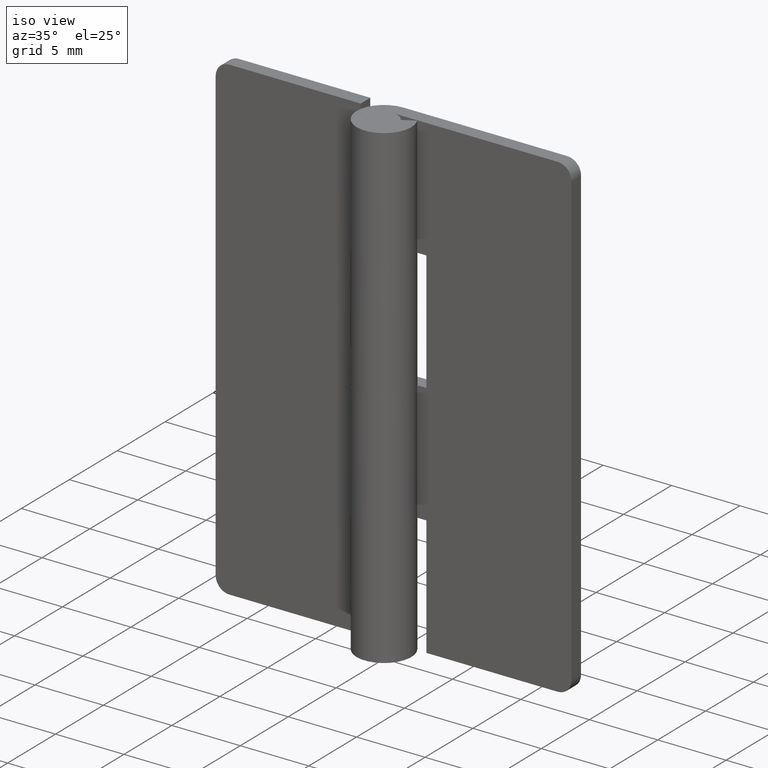
[diagram: clean part render]
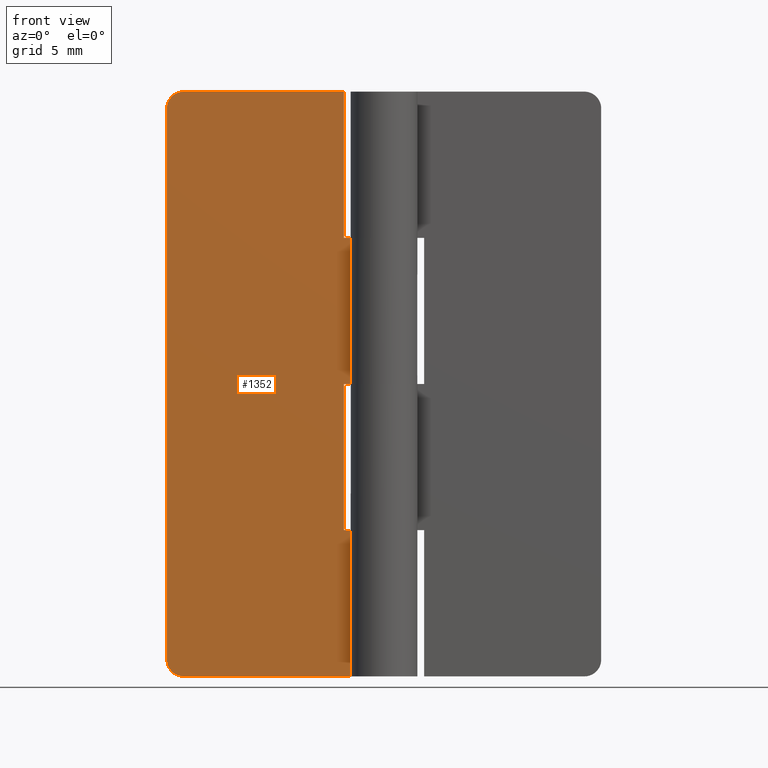
[diagram: tour spotlight — one face highlighted and labeled with its STEP entity id]
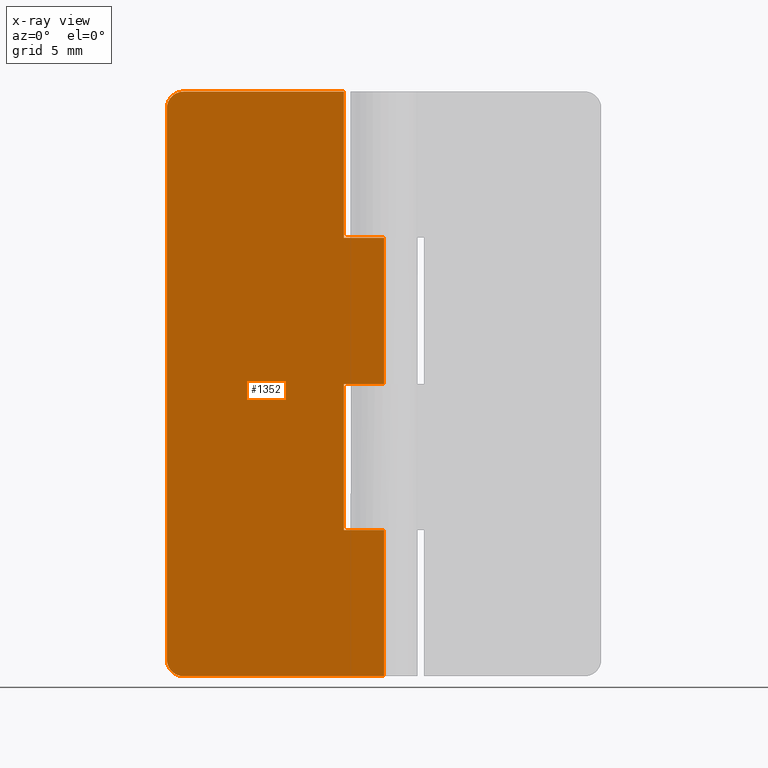
[diagram: x-ray of the same camera — body ghosted, this tour face saturated]
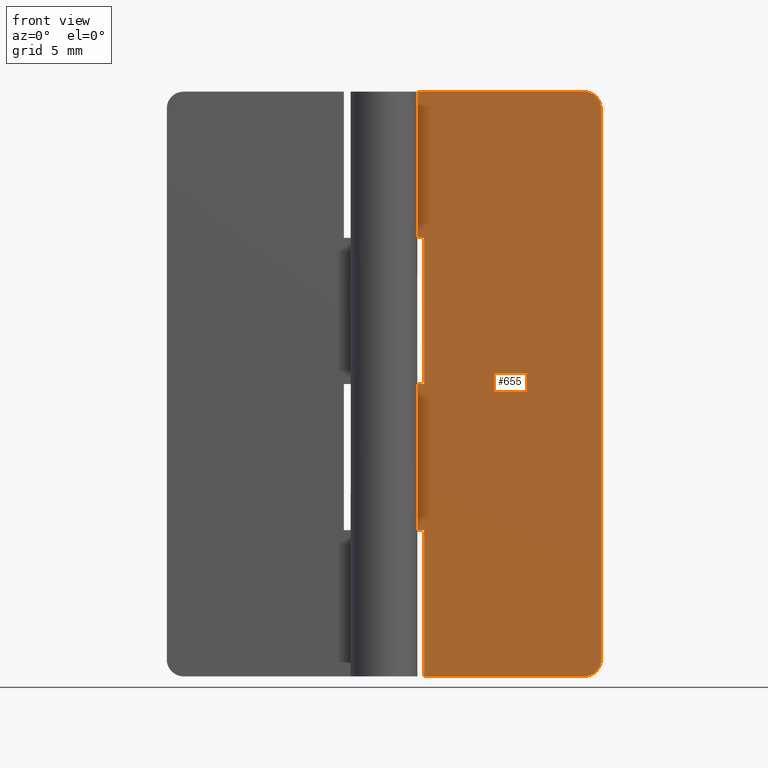
[diagram: tour spotlight — one face highlighted and labeled with its STEP entity id]
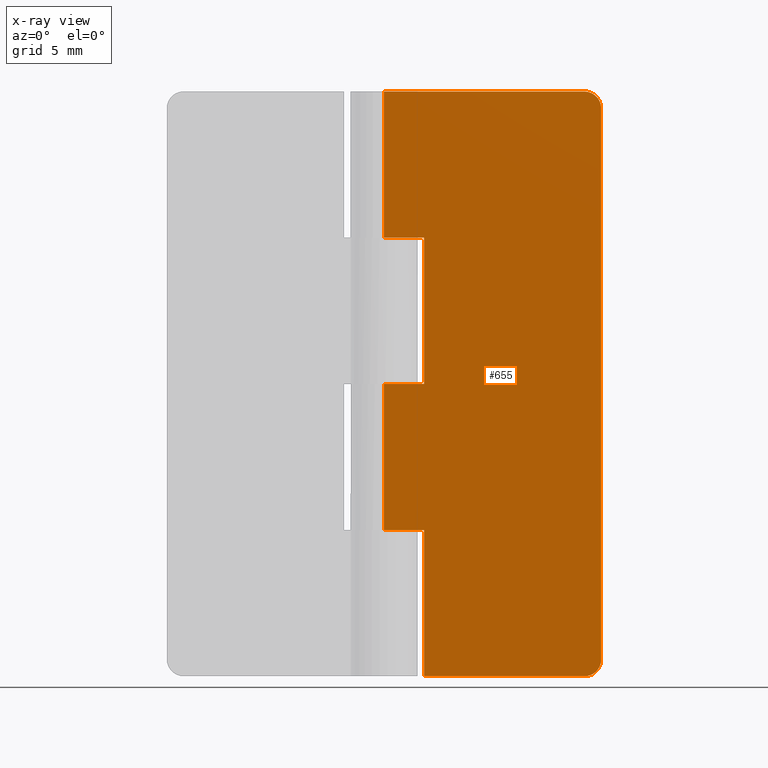
[diagram: x-ray of the same camera — body ghosted, this tour face saturated]
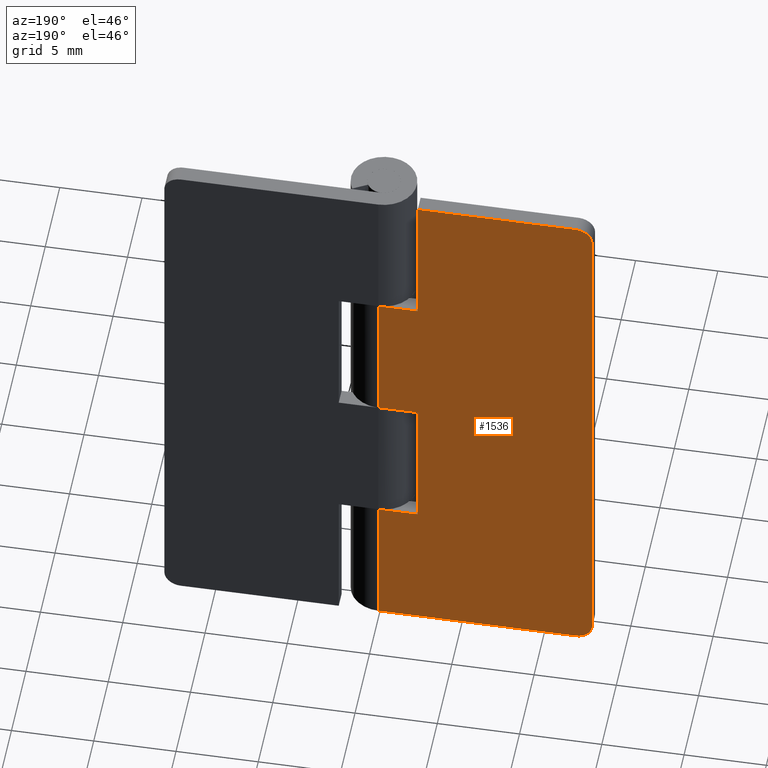
[diagram: tour spotlight — one face highlighted and labeled with its STEP entity id]
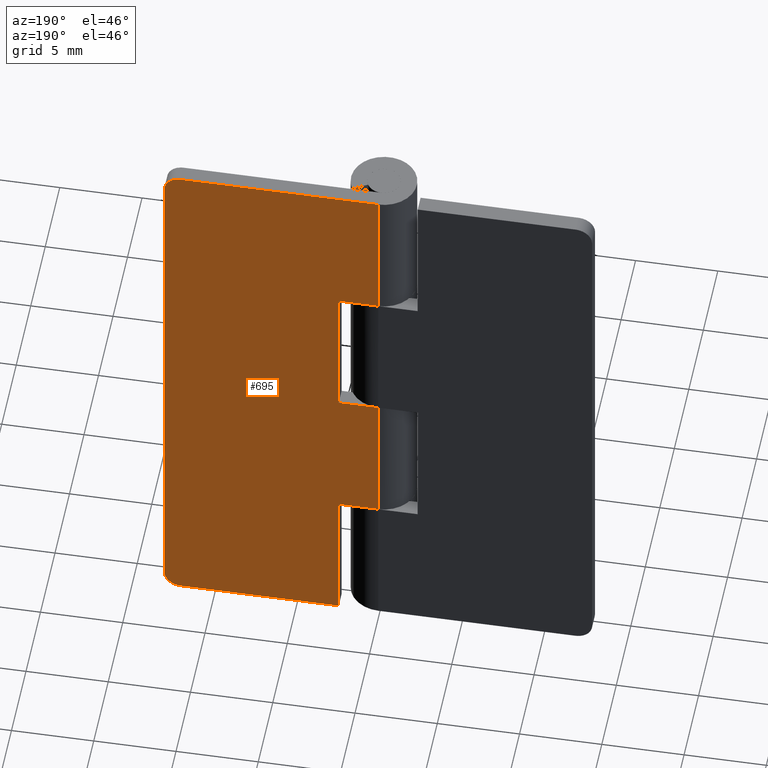
[diagram: tour spotlight — one face highlighted and labeled with its STEP entity id]
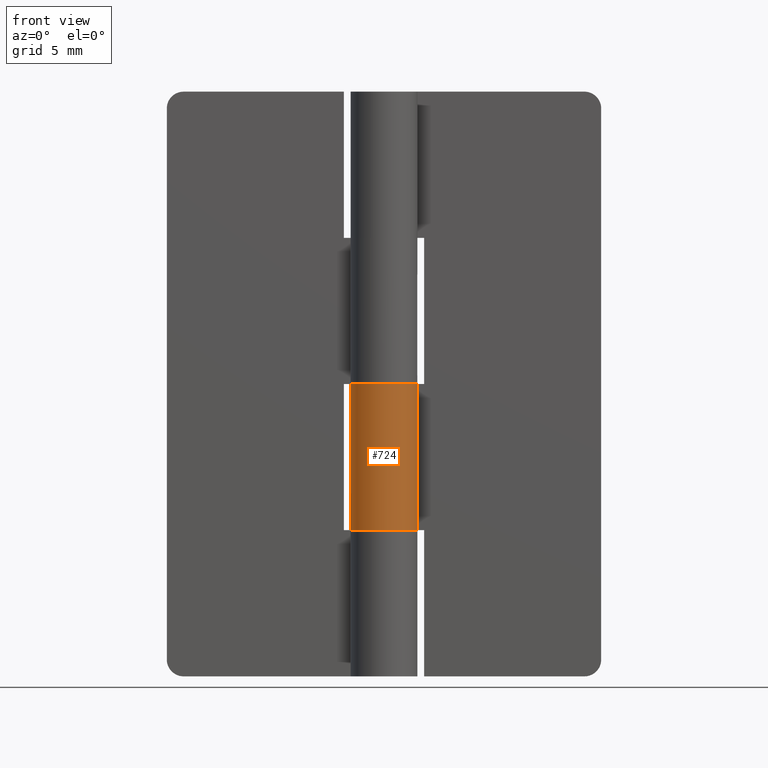
[diagram: tour spotlight — one face highlighted and labeled with its STEP entity id]
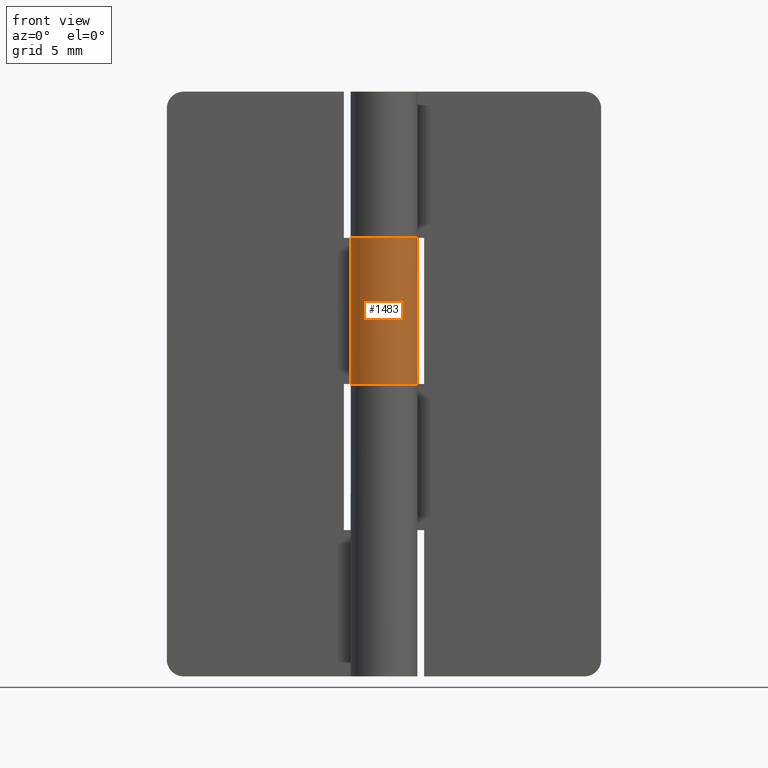
[diagram: tour spotlight — one face highlighted and labeled with its STEP entity id]
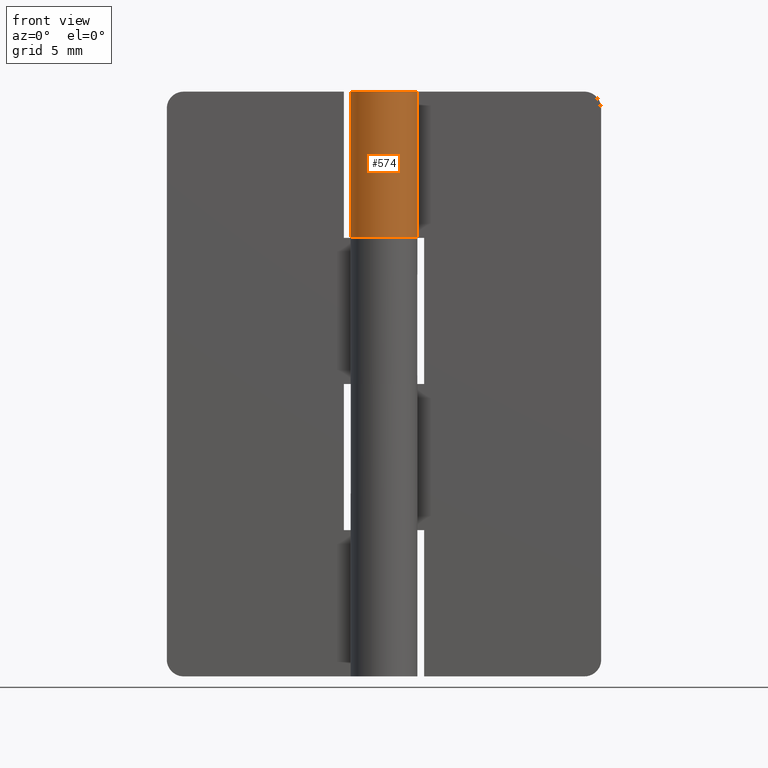
[diagram: tour spotlight — one face highlighted and labeled with its STEP entity id]
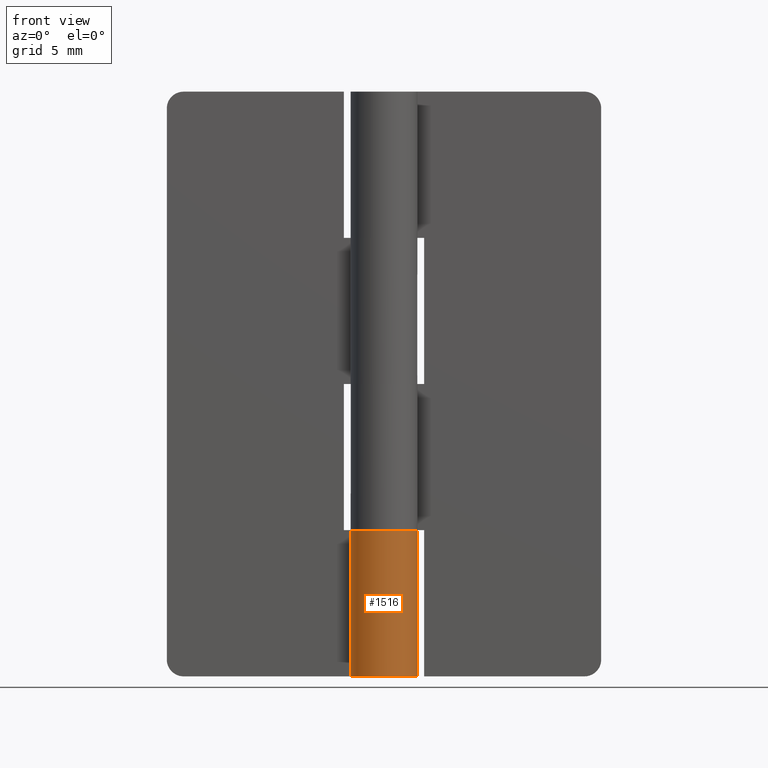
[diagram: tour spotlight — one face highlighted and labeled with its STEP entity id]
A machine part: a face-by-face anatomy tour. The part has 40 B-rep faces; the first image is the clean iso view, then the 8 largest visible faces are spotlighted one at a time (largest first), each with its STEP entity span.

Face 1 — front view, entity #1352. An x-ray twin of the same camera follows (body ghosted, this face saturated) — the face is partly hidden behind the body. In plain terms, the highlighted face is a freeform B-spline surface patch.
Definition (entity closure, byte-faithful):
#825=CARTESIAN_POINT('',(-12.0,1.0,35.0));
#826=VERTEX_POINT('',#825);
#827=CARTESIAN_POINT('',(-13.0,1.0,34.0));
#828=VERTEX_POINT('',#827);
#829=CARTESIAN_POINT('',(-12.0,1.0,35.0));
#830=CARTESIAN_POINT('',(-13.000000000000004,1.0,34.999999999999993));
#831=CARTESIAN_POINT('',(-13.0,1.0,34.0));
#839=(BOUNDED_CURVE()B_SPLINE_CURVE(2,(#829,#830,#831),.UNSPECIFIED.,.F.,.U.)CURVE()GEOMETRIC_REPRESENTATION_ITEM()QUASI_UNIFORM_CURVE()RATIONAL_B_SPLINE_CURVE((1.0,0.707106781186548,1.0))REPRESENTATION_ITEM(''));
#840=EDGE_CURVE('',#826,#828,#839,.T.);
#886=CARTESIAN_POINT('',(-13.0,1.0,1.0));
#887=VERTEX_POINT('',#886);
#888=CARTESIAN_POINT('',(-12.0,1.0,0.0));
#889=VERTEX_POINT('',#888);
#890=CARTESIAN_POINT('',(-13.0,1.0,1.0));
#891=CARTESIAN_POINT('',(-13.000000000000004,1.0,0.0));
#892=CARTESIAN_POINT('',(-12.0,1.0,0.0));
#900=(BOUNDED_CURVE()B_SPLINE_CURVE(2,(#890,#891,#892),.UNSPECIFIED.,.F.,.U.)CURVE()GEOMETRIC_REPRESENTATION_ITEM()QUASI_UNIFORM_CURVE()RATIONAL_B_SPLINE_CURVE((1.0,0.707106781186548,1.0))REPRESENTATION_ITEM(''));
#901=EDGE_CURVE('',#887,#889,#900,.T.);
#968=CARTESIAN_POINT('',(6.123032E-017,1.0,17.500000000000000));
#969=VERTEX_POINT('',#968);
#989=CARTESIAN_POINT('',(-2.400002000000100,1.0,17.500000000000000));
#990=VERTEX_POINT('',#989);
#991=CARTESIAN_POINT('',(-2.400002000000100,1.0,17.500000000000000));
#992=CARTESIAN_POINT('',(6.123032E-017,1.0,17.500000000000000));
#993=QUASI_UNIFORM_CURVE('',1,(#991,#992),.UNSPECIFIED.,.F.,.U.);
#994=EDGE_CURVE('',#990,#969,#993,.T.);
#1025=CARTESIAN_POINT('',(-2.400002000000100,1.0,8.750000000000000));
#1026=VERTEX_POINT('',#1025);
#1032=CARTESIAN_POINT('',(6.123122E-017,1.0,8.750000000000000));
#1033=VERTEX_POINT('',#1032);
#1034=CARTESIAN_POINT('',(6.123122E-017,1.0,8.750000000000000));
#1035=CARTESIAN_POINT('',(-2.400002000000100,1.0,8.750000000000000));
#1036=QUASI_UNIFORM_CURVE('',1,(#1034,#1035),.UNSPECIFIED.,.F.,.U.);
#1037=EDGE_CURVE('',#1033,#1026,#1036,.T.);
#1101=CARTESIAN_POINT('',(-2.400002000000100,1.0,8.750000000000000));
#1102=CARTESIAN_POINT('',(-2.400002000000100,1.0,17.500000000000000));
#1103=QUASI_UNIFORM_CURVE('',1,(#1101,#1102),.UNSPECIFIED.,.F.,.U.);
#1104=EDGE_CURVE('',#1026,#990,#1103,.T.);
#1123=CARTESIAN_POINT('',(-2.400002000000100,1.0,26.250000000000000));
#1124=VERTEX_POINT('',#1123);
#1130=CARTESIAN_POINT('',(6.123122E-017,1.0,26.250000000000000));
#1131=VERTEX_POINT('',#1130);
#1132=CARTESIAN_POINT('',(6.123122E-017,1.0,26.250000000000000));
#1133=CARTESIAN_POINT('',(-2.400002000000100,1.0,26.250000000000000));
#1134=QUASI_UNIFORM_CURVE('',1,(#1132,#1133),.UNSPECIFIED.,.F.,.U.);
#1135=EDGE_CURVE('',#1131,#1124,#1134,.T.);
#1200=CARTESIAN_POINT('',(-2.400002000000100,1.0,35.0));
#1201=VERTEX_POINT('',#1200);
#1207=CARTESIAN_POINT('',(-2.400002000000100,1.0,26.250000000000000));
#1208=CARTESIAN_POINT('',(-2.400002000000100,1.0,35.0));
#1209=QUASI_UNIFORM_CURVE('',1,(#1207,#1208),.UNSPECIFIED.,.F.,.U.);
#1210=EDGE_CURVE('',#1124,#1201,#1209,.T.);
#1220=CARTESIAN_POINT('',(6.123032E-017,1.0,0.0));
#1221=VERTEX_POINT('',#1220);
#1222=CARTESIAN_POINT('',(6.123032E-017,1.0,0.0));
#1223=CARTESIAN_POINT('',(-12.0,1.0,0.0));
#1224=QUASI_UNIFORM_CURVE('',1,(#1222,#1223),.UNSPECIFIED.,.F.,.U.);
#1225=EDGE_CURVE('',#1221,#889,#1224,.T.);
#1296=CARTESIAN_POINT('',(-13.0,1.0,34.0));
#1297=CARTESIAN_POINT('',(-13.0,1.0,1.0));
#1298=QUASI_UNIFORM_CURVE('',1,(#1296,#1297),.UNSPECIFIED.,.F.,.U.);
#1299=EDGE_CURVE('',#828,#887,#1298,.T.);
#1316=CARTESIAN_POINT('',(-2.400002000000100,1.0,35.0));
#1317=CARTESIAN_POINT('',(-12.0,1.0,35.0));
#1318=QUASI_UNIFORM_CURVE('',1,(#1316,#1317),.UNSPECIFIED.,.F.,.U.);
#1319=EDGE_CURVE('',#1201,#826,#1318,.T.);
#1325=CARTESIAN_POINT('',(-13.649349974803480,1.0,36.748249932163212));
#1326=CARTESIAN_POINT('',(-13.649349974803480,1.0,-1.748250870936364));
#1327=CARTESIAN_POINT('',(0.649350323490649,1.0,36.748249932163212));
#1328=CARTESIAN_POINT('',(0.649350323490649,1.0,-1.748250870936364));
#1329=B_SPLINE_SURFACE_WITH_KNOTS('',1,1,((#1325,#1327),(#1326,#1328)),.UNSPECIFIED.,.F.,.F.,.U.,(2,2),(2,2),(0.0,38.496500803099572),(0.0,14.298700298294129),.UNSPECIFIED.);
#1330=ORIENTED_EDGE('',*,*,#1299,.T.);
#1331=ORIENTED_EDGE('',*,*,#901,.T.);
#1332=ORIENTED_EDGE('',*,*,#1225,.F.);
#1333=CARTESIAN_POINT('',(6.123122E-017,1.0,8.750000000000000));
#1334=CARTESIAN_POINT('',(6.123032E-017,1.0,0.0));
#1335=QUASI_UNIFORM_CURVE('',1,(#1333,#1334),.UNSPECIFIED.,.F.,.U.);
#1336=EDGE_CURVE('',#1033,#1221,#1335,.T.);
#1337=ORIENTED_EDGE('',*,*,#1336,.F.);
#1338=ORIENTED_EDGE('',*,*,#1037,.T.);
#1339=ORIENTED_EDGE('',*,*,#1104,.T.);
#1340=ORIENTED_EDGE('',*,*,#994,.T.);
#1341=CARTESIAN_POINT('',(6.123122E-017,1.0,26.250000000000000));
#1342=CARTESIAN_POINT('',(6.123032E-017,1.0,17.500000000000000));
#1343=QUASI_UNIFORM_CURVE('',1,(#1341,#1342),.UNSPECIFIED.,.F.,.U.);
#1344=EDGE_CURVE('',#1131,#969,#1343,.T.);
#1345=ORIENTED_EDGE('',*,*,#1344,.F.);
#1346=ORIENTED_EDGE('',*,*,#1135,.T.);
#1347=ORIENTED_EDGE('',*,*,#1210,.T.);
#1348=ORIENTED_EDGE('',*,*,#1319,.T.);
#1349=ORIENTED_EDGE('',*,*,#840,.T.);
#1350=EDGE_LOOP('',(#1330,#1331,#1332,#1337,#1338,#1339,#1340,#1345,#1346,#1347,#1348,#1349));
#1351=FACE_OUTER_BOUND('',#1350,.T.);
#1352=ADVANCED_FACE('',(#1351),#1329,.T.);

Face 2 — front view, entity #655. An x-ray twin of the same camera follows (body ghosted, this face saturated) — the face is partly hidden behind the body. In plain terms, the highlighted face is a freeform B-spline surface patch.
Definition (entity closure, byte-faithful):
#75=CARTESIAN_POINT('',(12.0,1.0,35.0));
#76=VERTEX_POINT('',#75);
#82=CARTESIAN_POINT('',(13.0,1.0,34.0));
#83=VERTEX_POINT('',#82);
#84=CARTESIAN_POINT('',(13.0,1.0,34.0));
#85=CARTESIAN_POINT('',(13.000000000000004,1.0,34.999999999999993));
#86=CARTESIAN_POINT('',(12.0,1.0,35.0));
#94=(BOUNDED_CURVE()B_SPLINE_CURVE(2,(#84,#85,#86),.UNSPECIFIED.,.F.,.U.)CURVE()GEOMETRIC_REPRESENTATION_ITEM()QUASI_UNIFORM_CURVE()RATIONAL_B_SPLINE_CURVE((1.0,0.707106781186548,1.0))REPRESENTATION_ITEM(''));
#95=EDGE_CURVE('',#83,#76,#94,.T.);
#136=CARTESIAN_POINT('',(13.0,1.0,1.0));
#137=VERTEX_POINT('',#136);
#143=CARTESIAN_POINT('',(12.0,1.0,0.0));
#144=VERTEX_POINT('',#143);
#145=CARTESIAN_POINT('',(12.0,1.0,0.0));
#146=CARTESIAN_POINT('',(13.000000000000004,1.0,0.0));
#147=CARTESIAN_POINT('',(13.0,1.0,1.0));
#155=(BOUNDED_CURVE()B_SPLINE_CURVE(2,(#145,#146,#147),.UNSPECIFIED.,.F.,.U.)CURVE()GEOMETRIC_REPRESENTATION_ITEM()QUASI_UNIFORM_CURVE()RATIONAL_B_SPLINE_CURVE((1.0,0.707106781186548,1.0))REPRESENTATION_ITEM(''));
#156=EDGE_CURVE('',#144,#137,#155,.T.);
#171=CARTESIAN_POINT('',(2.400001999999900,1.0,17.500000000000000));
#172=VERTEX_POINT('',#171);
#173=CARTESIAN_POINT('',(2.400001999999900,1.0,26.250000000000000));
#174=VERTEX_POINT('',#173);
#175=CARTESIAN_POINT('',(2.400001999999900,1.0,17.500000000000000));
#176=CARTESIAN_POINT('',(2.400001999999900,1.0,26.250000000000000));
#177=QUASI_UNIFORM_CURVE('',1,(#175,#176),.UNSPECIFIED.,.F.,.U.);
#178=EDGE_CURVE('',#172,#174,#177,.T.);
#207=CARTESIAN_POINT('',(0.0,1.0,17.500000000000000));
#208=VERTEX_POINT('',#207);
#209=CARTESIAN_POINT('',(0.0,1.0,17.500000000000000));
#210=CARTESIAN_POINT('',(2.400001999999900,1.0,17.500000000000000));
#211=QUASI_UNIFORM_CURVE('',1,(#209,#210),.UNSPECIFIED.,.F.,.U.);
#212=EDGE_CURVE('',#208,#172,#211,.T.);
#277=CARTESIAN_POINT('',(0.0,1.0,26.250000000000000));
#278=VERTEX_POINT('',#277);
#279=CARTESIAN_POINT('',(2.400001999999900,1.0,26.250000000000000));
#280=CARTESIAN_POINT('',(0.0,1.0,26.250000000000000));
#281=QUASI_UNIFORM_CURVE('',1,(#279,#280),.UNSPECIFIED.,.F.,.U.);
#282=EDGE_CURVE('',#174,#278,#281,.T.);
#347=CARTESIAN_POINT('',(2.400001999999900,1.0,0.0));
#348=VERTEX_POINT('',#347);
#349=CARTESIAN_POINT('',(2.400001999999900,1.0,8.750000000000000));
#350=VERTEX_POINT('',#349);
#351=CARTESIAN_POINT('',(2.400001999999900,1.0,0.0));
#352=CARTESIAN_POINT('',(2.400001999999900,1.0,8.750000000000000));
#353=QUASI_UNIFORM_CURVE('',1,(#351,#352),.UNSPECIFIED.,.F.,.U.);
#354=EDGE_CURVE('',#348,#350,#353,.T.);
#383=CARTESIAN_POINT('',(0.0,1.0,8.750000000000000));
#384=VERTEX_POINT('',#383);
#385=CARTESIAN_POINT('',(2.400001999999900,1.0,8.750000000000000));
#386=CARTESIAN_POINT('',(0.0,1.0,8.750000000000000));
#387=QUASI_UNIFORM_CURVE('',1,(#385,#386),.UNSPECIFIED.,.F.,.U.);
#388=EDGE_CURVE('',#350,#384,#387,.T.);
#459=CARTESIAN_POINT('',(12.0,1.0,0.0));
#460=CARTESIAN_POINT('',(2.400001999999900,1.0,0.0));
#461=QUASI_UNIFORM_CURVE('',1,(#459,#460),.UNSPECIFIED.,.F.,.U.);
#462=EDGE_CURVE('',#144,#348,#461,.T.);
#473=CARTESIAN_POINT('',(0.0,1.0,35.0));
#474=VERTEX_POINT('',#473);
#475=CARTESIAN_POINT('',(12.0,1.0,35.0));
#476=CARTESIAN_POINT('',(0.0,1.0,35.0));
#477=QUASI_UNIFORM_CURVE('',1,(#475,#476),.UNSPECIFIED.,.F.,.U.);
#478=EDGE_CURVE('',#76,#474,#477,.T.);
#620=CARTESIAN_POINT('',(0.0,1.0,17.500000000000000));
#621=CARTESIAN_POINT('',(0.0,1.0,8.750000000000000));
#622=QUASI_UNIFORM_CURVE('',1,(#620,#621),.UNSPECIFIED.,.F.,.U.);
#623=EDGE_CURVE('',#208,#384,#622,.T.);
#628=CARTESIAN_POINT('',(-0.649349974803477,1.0,36.748249932163212));
#629=CARTESIAN_POINT('',(-0.649349974803477,1.0,-1.748250870936364));
#630=CARTESIAN_POINT('',(13.649350323490649,1.0,36.748249932163212));
#631=CARTESIAN_POINT('',(13.649350323490649,1.0,-1.748250870936364));
#632=B_SPLINE_SURFACE_WITH_KNOTS('',1,1,((#628,#630),(#629,#631)),.UNSPECIFIED.,.F.,.F.,.U.,(2,2),(2,2),(0.0,38.496500803099572),(0.0,14.298700298294129),.UNSPECIFIED.);
#633=ORIENTED_EDGE('',*,*,#462,.F.);
#634=ORIENTED_EDGE('',*,*,#156,.T.);
#635=CARTESIAN_POINT('',(13.0,1.0,34.0));
#636=CARTESIAN_POINT('',(13.0,1.0,1.0));
#637=QUASI_UNIFORM_CURVE('',1,(#635,#636),.UNSPECIFIED.,.F.,.U.);
#638=EDGE_CURVE('',#83,#137,#637,.T.);
#639=ORIENTED_EDGE('',*,*,#638,.F.);
#640=ORIENTED_EDGE('',*,*,#95,.T.);
#641=ORIENTED_EDGE('',*,*,#478,.T.);
#642=CARTESIAN_POINT('',(0.0,1.0,35.0));
#643=CARTESIAN_POINT('',(0.0,1.0,26.250000000000000));
#644=QUASI_UNIFORM_CURVE('',1,(#642,#643),.UNSPECIFIED.,.F.,.U.);
#645=EDGE_CURVE('',#474,#278,#644,.T.);
#646=ORIENTED_EDGE('',*,*,#645,.T.);
#647=ORIENTED_EDGE('',*,*,#282,.F.);
#648=ORIENTED_EDGE('',*,*,#178,.F.);
#649=ORIENTED_EDGE('',*,*,#212,.F.);
#650=ORIENTED_EDGE('',*,*,#623,.T.);
#651=ORIENTED_EDGE('',*,*,#388,.F.);
#652=ORIENTED_EDGE('',*,*,#354,.F.);
#653=EDGE_LOOP('',(#633,#634,#639,#640,#641,#646,#647,#648,#649,#650,#651,#652));
#654=FACE_OUTER_BOUND('',#653,.T.);
#655=ADVANCED_FACE('',(#654),#632,.T.);

Face 3 — auxiliary view, entity #1536. In plain terms, the highlighted face is a freeform B-spline surface patch.
Definition (entity closure, byte-faithful):
#842=CARTESIAN_POINT('',(-12.0,2.0,35.0));
#843=VERTEX_POINT('',#842);
#849=CARTESIAN_POINT('',(-13.0,2.0,34.0));
#850=VERTEX_POINT('',#849);
#851=CARTESIAN_POINT('',(-13.0,2.0,34.0));
#852=CARTESIAN_POINT('',(-13.000000000000004,2.000000000000000,34.999999999999993));
#853=CARTESIAN_POINT('',(-12.0,2.0,35.0));
#861=(BOUNDED_CURVE()B_SPLINE_CURVE(2,(#851,#852,#853),.UNSPECIFIED.,.F.,.U.)CURVE()GEOMETRIC_REPRESENTATION_ITEM()QUASI_UNIFORM_CURVE()RATIONAL_B_SPLINE_CURVE((1.0,0.707106781186548,1.0))REPRESENTATION_ITEM(''));
#862=EDGE_CURVE('',#850,#843,#861,.T.);
#903=CARTESIAN_POINT('',(-13.0,2.0,1.0));
#904=VERTEX_POINT('',#903);
#910=CARTESIAN_POINT('',(-12.0,2.0,0.0));
#911=VERTEX_POINT('',#910);
#912=CARTESIAN_POINT('',(-12.0,2.0,0.0));
#913=CARTESIAN_POINT('',(-13.000000000000004,2.000000000000000,0.0));
#914=CARTESIAN_POINT('',(-13.0,2.0,1.0));
#922=(BOUNDED_CURVE()B_SPLINE_CURVE(2,(#912,#913,#914),.UNSPECIFIED.,.F.,.U.)CURVE()GEOMETRIC_REPRESENTATION_ITEM()QUASI_UNIFORM_CURVE()RATIONAL_B_SPLINE_CURVE((1.0,0.707106781186548,1.0))REPRESENTATION_ITEM(''));
#923=EDGE_CURVE('',#911,#904,#922,.T.);
#940=CARTESIAN_POINT('',(0.0,2.0,17.500000000000000));
#941=VERTEX_POINT('',#940);
#996=CARTESIAN_POINT('',(-2.400002000000100,2.0,17.500000000000000));
#997=VERTEX_POINT('',#996);
#1003=CARTESIAN_POINT('',(0.0,2.0,17.500000000000000));
#1004=CARTESIAN_POINT('',(-2.400002000000100,2.0,17.500000000000000));
#1005=QUASI_UNIFORM_CURVE('',1,(#1003,#1004),.UNSPECIFIED.,.F.,.U.);
#1006=EDGE_CURVE('',#941,#997,#1005,.T.);
#1016=CARTESIAN_POINT('',(-2.400002000000100,2.0,8.750000000000000));
#1017=VERTEX_POINT('',#1016);
#1018=CARTESIAN_POINT('',(0.0,2.0,8.750000000000000));
#1019=VERTEX_POINT('',#1018);
#1020=CARTESIAN_POINT('',(-2.400002000000100,2.0,8.750000000000000));
#1021=CARTESIAN_POINT('',(0.0,2.0,8.750000000000000));
#1022=QUASI_UNIFORM_CURVE('',1,(#1020,#1021),.UNSPECIFIED.,.F.,.U.);
#1023=EDGE_CURVE('',#1017,#1019,#1022,.T.);
#1095=CARTESIAN_POINT('',(-2.400002000000100,2.0,17.500000000000000));
#1096=CARTESIAN_POINT('',(-2.400002000000100,2.0,8.750000000000000));
#1097=QUASI_UNIFORM_CURVE('',1,(#1095,#1096),.UNSPECIFIED.,.F.,.U.);
#1098=EDGE_CURVE('',#997,#1017,#1097,.T.);
#1114=CARTESIAN_POINT('',(-2.400002000000100,2.0,26.250000000000000));
#1115=VERTEX_POINT('',#1114);
#1116=CARTESIAN_POINT('',(0.0,2.0,26.250000000000000));
#1117=VERTEX_POINT('',#1116);
#1118=CARTESIAN_POINT('',(-2.400002000000100,2.0,26.250000000000000));
#1119=CARTESIAN_POINT('',(0.0,2.0,26.250000000000000));
#1120=QUASI_UNIFORM_CURVE('',1,(#1118,#1119),.UNSPECIFIED.,.F.,.U.);
#1121=EDGE_CURVE('',#1115,#1117,#1120,.T.);
#1193=CARTESIAN_POINT('',(-2.400002000000100,2.0,35.0));
#1194=VERTEX_POINT('',#1193);
#1195=CARTESIAN_POINT('',(-2.400002000000100,2.0,35.0));
#1196=CARTESIAN_POINT('',(-2.400002000000100,2.0,26.250000000000000));
#1197=QUASI_UNIFORM_CURVE('',1,(#1195,#1196),.UNSPECIFIED.,.F.,.U.);
#1198=EDGE_CURVE('',#1194,#1115,#1197,.T.);
#1228=CARTESIAN_POINT('',(-3.673819E-016,2.0,0.0));
#1229=VERTEX_POINT('',#1228);
#1230=CARTESIAN_POINT('',(-12.0,2.0,0.0));
#1231=CARTESIAN_POINT('',(-3.673819E-016,2.0,0.0));
#1232=QUASI_UNIFORM_CURVE('',1,(#1230,#1231),.UNSPECIFIED.,.F.,.U.);
#1233=EDGE_CURVE('',#911,#1229,#1232,.T.);
#1290=CARTESIAN_POINT('',(-13.0,2.0,34.0));
#1291=CARTESIAN_POINT('',(-13.0,2.0,1.0));
#1292=QUASI_UNIFORM_CURVE('',1,(#1290,#1291),.UNSPECIFIED.,.F.,.U.);
#1293=EDGE_CURVE('',#850,#904,#1292,.T.);
#1310=CARTESIAN_POINT('',(-12.0,2.0,35.0));
#1311=CARTESIAN_POINT('',(-2.400002000000100,2.0,35.0));
#1312=QUASI_UNIFORM_CURVE('',1,(#1310,#1311),.UNSPECIFIED.,.F.,.U.);
#1313=EDGE_CURVE('',#843,#1194,#1312,.T.);
#1474=CARTESIAN_POINT('',(0.0,2.0,26.250000000000000));
#1475=CARTESIAN_POINT('',(0.0,2.0,17.500000000000000));
#1476=QUASI_UNIFORM_CURVE('',1,(#1474,#1475),.UNSPECIFIED.,.F.,.U.);
#1477=EDGE_CURVE('',#1117,#941,#1476,.T.);
#1509=CARTESIAN_POINT('',(0.0,2.0,8.750000000000000));
#1510=CARTESIAN_POINT('',(-3.673819E-016,2.0,0.0));
#1511=QUASI_UNIFORM_CURVE('',1,(#1509,#1510),.UNSPECIFIED.,.F.,.U.);
#1512=EDGE_CURVE('',#1019,#1229,#1511,.T.);
#1517=CARTESIAN_POINT('',(-13.649349974803480,2.0,-1.748249932163210));
#1518=CARTESIAN_POINT('',(-13.649349974803480,2.0,36.748250870936360));
#1519=CARTESIAN_POINT('',(0.649350323490649,2.0,-1.748249932163210));
#1520=CARTESIAN_POINT('',(0.649350323490649,2.0,36.748250870936360));
#1521=B_SPLINE_SURFACE_WITH_KNOTS('',1,1,((#1517,#1519),(#1518,#1520)),.UNSPECIFIED.,.F.,.F.,.U.,(2,2),(2,2),(0.0,38.496500803099572),(0.0,14.298700298294129),.UNSPECIFIED.);
#1522=ORIENTED_EDGE('',*,*,#1233,.F.);
#1523=ORIENTED_EDGE('',*,*,#923,.T.);
#1524=ORIENTED_EDGE('',*,*,#1293,.F.);
#1525=ORIENTED_EDGE('',*,*,#862,.T.);
#1526=ORIENTED_EDGE('',*,*,#1313,.T.);
#1527=ORIENTED_EDGE('',*,*,#1198,.T.);
#1528=ORIENTED_EDGE('',*,*,#1121,.T.);
#1529=ORIENTED_EDGE('',*,*,#1477,.T.);
#1530=ORIENTED_EDGE('',*,*,#1006,.T.);
#1531=ORIENTED_EDGE('',*,*,#1098,.T.);
#1532=ORIENTED_EDGE('',*,*,#1023,.T.);
#1533=ORIENTED_EDGE('',*,*,#1512,.T.);
#1534=EDGE_LOOP('',(#1522,#1523,#1524,#1525,#1526,#1527,#1528,#1529,#1530,#1531,#1532,#1533));
#1535=FACE_OUTER_BOUND('',#1534,.T.);
#1536=ADVANCED_FACE('',(#1535),#1521,.T.);

Face 4 — auxiliary view, entity #695. In plain terms, the highlighted face is a freeform B-spline surface patch.
Definition (entity closure, byte-faithful):
#58=CARTESIAN_POINT('',(12.0,2.0,35.0));
#59=VERTEX_POINT('',#58);
#60=CARTESIAN_POINT('',(13.0,2.0,34.0));
#61=VERTEX_POINT('',#60);
#62=CARTESIAN_POINT('',(12.0,2.0,35.0));
#63=CARTESIAN_POINT('',(13.000000000000004,2.000000000000000,34.999999999999993));
#64=CARTESIAN_POINT('',(13.0,2.0,34.0));
#72=(BOUNDED_CURVE()B_SPLINE_CURVE(2,(#62,#63,#64),.UNSPECIFIED.,.F.,.U.)CURVE()GEOMETRIC_REPRESENTATION_ITEM()QUASI_UNIFORM_CURVE()RATIONAL_B_SPLINE_CURVE((1.0,0.707106781186548,1.0))REPRESENTATION_ITEM(''));
#73=EDGE_CURVE('',#59,#61,#72,.T.);
#119=CARTESIAN_POINT('',(13.0,2.0,1.0));
#120=VERTEX_POINT('',#119);
#121=CARTESIAN_POINT('',(12.0,2.0,0.0));
#122=VERTEX_POINT('',#121);
#123=CARTESIAN_POINT('',(13.0,2.0,1.0));
#124=CARTESIAN_POINT('',(13.000000000000004,2.000000000000000,0.0));
#125=CARTESIAN_POINT('',(12.0,2.0,0.0));
#133=(BOUNDED_CURVE()B_SPLINE_CURVE(2,(#123,#124,#125),.UNSPECIFIED.,.F.,.U.)CURVE()GEOMETRIC_REPRESENTATION_ITEM()QUASI_UNIFORM_CURVE()RATIONAL_B_SPLINE_CURVE((1.0,0.707106781186548,1.0))REPRESENTATION_ITEM(''));
#134=EDGE_CURVE('',#120,#122,#133,.T.);
#180=CARTESIAN_POINT('',(2.400001999999900,2.0,26.250000000000000));
#181=VERTEX_POINT('',#180);
#187=CARTESIAN_POINT('',(2.400001999999900,2.0,17.500000000000000));
#188=VERTEX_POINT('',#187);
#189=CARTESIAN_POINT('',(2.400001999999900,2.0,26.250000000000000));
#190=CARTESIAN_POINT('',(2.400001999999900,2.0,17.500000000000000));
#191=QUASI_UNIFORM_CURVE('',1,(#189,#190),.UNSPECIFIED.,.F.,.U.);
#192=EDGE_CURVE('',#181,#188,#191,.T.);
#215=CARTESIAN_POINT('',(-3.673819E-016,2.0,17.500000000000000));
#216=VERTEX_POINT('',#215);
#217=CARTESIAN_POINT('',(2.400001999999900,2.0,17.500000000000000));
#218=CARTESIAN_POINT('',(-3.673819E-016,2.0,17.500000000000000));
#219=QUASI_UNIFORM_CURVE('',1,(#217,#218),.UNSPECIFIED.,.F.,.U.);
#220=EDGE_CURVE('',#188,#216,#219,.T.);
#312=CARTESIAN_POINT('',(0.0,2.0,26.250000000000000));
#313=VERTEX_POINT('',#312);
#333=CARTESIAN_POINT('',(0.0,2.0,26.250000000000000));
#334=CARTESIAN_POINT('',(2.400001999999900,2.0,26.250000000000000));
#335=QUASI_UNIFORM_CURVE('',1,(#333,#334),.UNSPECIFIED.,.F.,.U.);
#336=EDGE_CURVE('',#313,#181,#335,.T.);
#356=CARTESIAN_POINT('',(2.400001999999900,2.0,8.750000000000000));
#357=VERTEX_POINT('',#356);
#363=CARTESIAN_POINT('',(2.400001999999900,2.0,0.0));
#364=VERTEX_POINT('',#363);
#365=CARTESIAN_POINT('',(2.400001999999900,2.0,8.750000000000000));
#366=CARTESIAN_POINT('',(2.400001999999900,2.0,0.0));
#367=QUASI_UNIFORM_CURVE('',1,(#365,#366),.UNSPECIFIED.,.F.,.U.);
#368=EDGE_CURVE('',#357,#364,#367,.T.);
#418=CARTESIAN_POINT('',(0.0,2.0,8.750000000000000));
#419=VERTEX_POINT('',#418);
#439=CARTESIAN_POINT('',(0.0,2.0,8.750000000000000));
#440=CARTESIAN_POINT('',(2.400001999999900,2.0,8.750000000000000));
#441=QUASI_UNIFORM_CURVE('',1,(#439,#440),.UNSPECIFIED.,.F.,.U.);
#442=EDGE_CURVE('',#419,#357,#441,.T.);
#453=CARTESIAN_POINT('',(2.400001999999900,2.0,0.0));
#454=CARTESIAN_POINT('',(12.0,2.0,0.0));
#455=QUASI_UNIFORM_CURVE('',1,(#453,#454),.UNSPECIFIED.,.F.,.U.);
#456=EDGE_CURVE('',#364,#122,#455,.T.);
#481=CARTESIAN_POINT('',(-3.673819E-016,2.0,35.0));
#482=VERTEX_POINT('',#481);
#483=CARTESIAN_POINT('',(-3.673819E-016,2.0,35.0));
#484=CARTESIAN_POINT('',(12.0,2.0,35.0));
#485=QUASI_UNIFORM_CURVE('',1,(#483,#484),.UNSPECIFIED.,.F.,.U.);
#486=EDGE_CURVE('',#482,#59,#485,.T.);
#560=CARTESIAN_POINT('',(-3.673819E-016,2.0,35.0));
#561=CARTESIAN_POINT('',(0.0,2.0,26.250000000000000));
#562=QUASI_UNIFORM_CURVE('',1,(#560,#561),.UNSPECIFIED.,.F.,.U.);
#563=EDGE_CURVE('',#482,#313,#562,.T.);
#663=CARTESIAN_POINT('',(13.0,2.0,34.0));
#664=CARTESIAN_POINT('',(13.0,2.0,1.0));
#665=QUASI_UNIFORM_CURVE('',1,(#663,#664),.UNSPECIFIED.,.F.,.U.);
#666=EDGE_CURVE('',#61,#120,#665,.T.);
#672=CARTESIAN_POINT('',(-0.649349974803477,2.0,-1.748249932163210));
#673=CARTESIAN_POINT('',(-0.649349974803477,2.0,36.748250870936360));
#674=CARTESIAN_POINT('',(13.649350323490649,2.0,-1.748249932163210));
#675=CARTESIAN_POINT('',(13.649350323490649,2.0,36.748250870936360));
#676=B_SPLINE_SURFACE_WITH_KNOTS('',1,1,((#672,#674),(#673,#675)),.UNSPECIFIED.,.F.,.F.,.U.,(2,2),(2,2),(0.0,38.496500803099572),(0.0,14.298700298294129),.UNSPECIFIED.);
#677=ORIENTED_EDGE('',*,*,#666,.T.);
#678=ORIENTED_EDGE('',*,*,#134,.T.);
#679=ORIENTED_EDGE('',*,*,#456,.F.);
#680=ORIENTED_EDGE('',*,*,#368,.F.);
#681=ORIENTED_EDGE('',*,*,#442,.F.);
#682=CARTESIAN_POINT('',(-3.673819E-016,2.0,17.500000000000000));
#683=CARTESIAN_POINT('',(0.0,2.0,8.750000000000000));
#684=QUASI_UNIFORM_CURVE('',1,(#682,#683),.UNSPECIFIED.,.F.,.U.);
#685=EDGE_CURVE('',#216,#419,#684,.T.);
#686=ORIENTED_EDGE('',*,*,#685,.F.);
#687=ORIENTED_EDGE('',*,*,#220,.F.);
#688=ORIENTED_EDGE('',*,*,#192,.F.);
#689=ORIENTED_EDGE('',*,*,#336,.F.);
#690=ORIENTED_EDGE('',*,*,#563,.F.);
#691=ORIENTED_EDGE('',*,*,#486,.T.);
#692=ORIENTED_EDGE('',*,*,#73,.T.);
#693=EDGE_LOOP('',(#677,#678,#679,#680,#681,#686,#687,#688,#689,#690,#691,#692));
#694=FACE_OUTER_BOUND('',#693,.T.);
#695=ADVANCED_FACE('',(#694),#676,.T.);

Face 5 — front view, entity #724. In plain terms, the highlighted face is a freeform B-spline surface patch.
Definition (entity closure, byte-faithful):
#215=CARTESIAN_POINT('',(-3.673819E-016,2.0,17.500000000000000));
#216=VERTEX_POINT('',#215);
#222=CARTESIAN_POINT('',(1.759971590679805,0.950000000000000,17.500000000000000));
#223=VERTEX_POINT('',#222);
#224=CARTESIAN_POINT('',(1.759971590679804,0.950000000000000,17.500000000000000));
#225=CARTESIAN_POINT('',(2.483544518215583,-0.390492417103145,17.499999999999996));
#226=CARTESIAN_POINT('',(1.383518044628769,-1.444256840103792,17.500000000000000));
#227=CARTESIAN_POINT('',(0.283491571041955,-2.498021263104438,17.499999999999996));
#228=CARTESIAN_POINT('',(-1.024695076595959,-1.717556403731767,17.500000000000000));
#229=CARTESIAN_POINT('',(-2.332881724233874,-0.937091544359097,17.499999999999996));
#230=CARTESIAN_POINT('',(-1.928096575312494,0.531454227820451,17.500000000000000));
#231=CARTESIAN_POINT('',(-1.523311426391114,2.000000000000000,17.499999999999996));
#232=CARTESIAN_POINT('',(0.0,2.0,17.500000000000000));
#240=(BOUNDED_CURVE()B_SPLINE_CURVE(2,(#224,#225,#226,#227,#228,#229,#230,#231,#232),.UNSPECIFIED.,.F.,.U.)B_SPLINE_CURVE_WITH_KNOTS((3,2,2,2,3),(0.0,0.250000000000000,0.500000000000000,0.750000000000000,1.0),.UNSPECIFIED.)CURVE()GEOMETRIC_REPRESENTATION_ITEM()RATIONAL_B_SPLINE_CURVE((1.0,0.795527219493534,1.0,0.795527219493534,1.0,0.795527219493534,1.0,0.795527219493534,1.0))REPRESENTATION_ITEM(''));
#241=EDGE_CURVE('',#223,#216,#240,.T.);
#411=CARTESIAN_POINT('',(1.759971590679805,0.950000000000000,8.750000000000000));
#412=VERTEX_POINT('',#411);
#418=CARTESIAN_POINT('',(0.0,2.0,8.750000000000000));
#419=VERTEX_POINT('',#418);
#420=CARTESIAN_POINT('',(0.0,2.0,8.750000000000000));
#421=CARTESIAN_POINT('',(-1.523311426391113,2.000000000000000,8.750000000000000));
#422=CARTESIAN_POINT('',(-1.928096575312494,0.531454227820452,8.750000000000000));
#423=CARTESIAN_POINT('',(-2.332881724233875,-0.937091544359096,8.750000000000000));
#424=CARTESIAN_POINT('',(-1.024695076595960,-1.717556403731767,8.750000000000000));
#425=CARTESIAN_POINT('',(0.283491571041954,-2.498021263104437,8.750000000000000));
#426=CARTESIAN_POINT('',(1.383518044628768,-1.444256840103792,8.750000000000000));
#427=CARTESIAN_POINT('',(2.483544518215583,-0.390492417103146,8.750000000000000));
#428=CARTESIAN_POINT('',(1.759971590679805,0.949999999999999,8.750000000000000));
#436=(BOUNDED_CURVE()B_SPLINE_CURVE(2,(#420,#421,#422,#423,#424,#425,#426,#427,#428),.UNSPECIFIED.,.F.,.U.)B_SPLINE_CURVE_WITH_KNOTS((3,2,2,2,3),(0.0,0.250000000000000,0.500000000000000,0.750000000000000,1.0),.UNSPECIFIED.)CURVE()GEOMETRIC_REPRESENTATION_ITEM()RATIONAL_B_SPLINE_CURVE((1.0,0.795527219493534,1.0,0.795527219493534,1.0,0.795527219493534,1.0,0.795527219493534,1.0))REPRESENTATION_ITEM(''));
#437=EDGE_CURVE('',#419,#412,#436,.T.);
#581=CARTESIAN_POINT('',(1.759971590679805,0.950000000000000,17.500000000000000));
#582=CARTESIAN_POINT('',(1.759971590679805,0.950000000000000,8.750000000000000));
#583=QUASI_UNIFORM_CURVE('',1,(#581,#582),.UNSPECIFIED.,.F.,.U.);
#584=EDGE_CURVE('',#223,#412,#583,.T.);
#682=CARTESIAN_POINT('',(-3.673819E-016,2.0,17.500000000000000));
#683=CARTESIAN_POINT('',(0.0,2.0,8.750000000000000));
#684=QUASI_UNIFORM_CURVE('',1,(#682,#683),.UNSPECIFIED.,.F.,.U.);
#685=EDGE_CURVE('',#216,#419,#684,.T.);
#696=CARTESIAN_POINT('',(0.074705397571525,1.998604288891044,17.718750000000000));
#697=CARTESIAN_POINT('',(0.074705397571525,1.998604288891044,8.525781249999998));
#698=CARTESIAN_POINT('',(-2.378738422527869,2.090311034953130,17.718750000000004));
#699=CARTESIAN_POINT('',(-2.378738422527869,2.090311034953130,8.525781249999998));
#700=CARTESIAN_POINT('',(-1.972421111082867,-0.330990876845006,17.718750000000000));
#701=CARTESIAN_POINT('',(-1.972421111082867,-0.330990876845006,8.525781249999998));
#702=CARTESIAN_POINT('',(-1.566103799637865,-2.752292788643142,17.718750000000004));
#703=CARTESIAN_POINT('',(-1.566103799637865,-2.752292788643142,8.525781249999998));
#704=CARTESIAN_POINT('',(0.723011019827752,-1.864739945731745,17.718750000000000));
#705=CARTESIAN_POINT('',(0.723011019827752,-1.864739945731745,8.525781249999998));
#706=CARTESIAN_POINT('',(3.012125839293368,-0.977187102820347,17.718750000000004));
#707=CARTESIAN_POINT('',(3.012125839293368,-0.977187102820347,8.525781249999998));
#708=CARTESIAN_POINT('',(1.680010044685109,1.085157246557906,17.718750000000000));
#709=CARTESIAN_POINT('',(1.680010044685109,1.085157246557906,8.525781249999998));
#717=(BOUNDED_SURFACE()B_SPLINE_SURFACE(1,2,((#696,#698,#700,#702,#704,#706,#708),(#697,#699,#701,#703,#705,#707,#709)),.UNSPECIFIED.,.F.,.F.,.U.)B_SPLINE_SURFACE_WITH_KNOTS((2,2),(3,2,2,3),(0.0,9.192968750000006),(0.0,3.801531476131832,7.603062952263664,11.404594428395500),.UNSPECIFIED.)GEOMETRIC_REPRESENTATION_ITEM()RATIONAL_B_SPLINE_SURFACE(((1.0,0.631578351302498,1.0,0.631578351302498,1.0,0.631578351302498,1.0),(1.0,0.631578351302498,1.0,0.631578351302498,1.0,0.631578351302498,1.0)))REPRESENTATION_ITEM('')SURFACE());
#718=ORIENTED_EDGE('',*,*,#584,.F.);
#719=ORIENTED_EDGE('',*,*,#241,.T.);
#720=ORIENTED_EDGE('',*,*,#685,.T.);
#721=ORIENTED_EDGE('',*,*,#437,.T.);
#722=EDGE_LOOP('',(#718,#719,#720,#721));
#723=FACE_OUTER_BOUND('',#722,.T.);
#724=ADVANCED_FACE('',(#723),#717,.T.);

Face 6 — front view, entity #1483. In plain terms, the highlighted face is a freeform B-spline surface patch.
Definition (entity closure, byte-faithful):
#938=CARTESIAN_POINT('',(-1.759971590679805,0.950000000000000,17.500000000000000));
#939=VERTEX_POINT('',#938);
#940=CARTESIAN_POINT('',(0.0,2.0,17.500000000000000));
#941=VERTEX_POINT('',#940);
#942=CARTESIAN_POINT('',(-1.759971590679804,0.950000000000000,17.500000000000000));
#943=CARTESIAN_POINT('',(-2.483544518215584,-0.390492417103144,17.499999999999996));
#944=CARTESIAN_POINT('',(-1.383518044628769,-1.444256840103792,17.500000000000000));
#945=CARTESIAN_POINT('',(-0.283491571041955,-2.498021263104437,17.499999999999996));
#946=CARTESIAN_POINT('',(1.024695076595959,-1.717556403731767,17.500000000000000));
#947=CARTESIAN_POINT('',(2.332881724233873,-0.937091544359097,17.499999999999996));
#948=CARTESIAN_POINT('',(1.928096575312494,0.531454227820451,17.500000000000000));
#949=CARTESIAN_POINT('',(1.523311426391115,2.000000000000000,17.499999999999996));
#950=CARTESIAN_POINT('',(0.0,2.0,17.500000000000000));
#958=(BOUNDED_CURVE()B_SPLINE_CURVE(2,(#942,#943,#944,#945,#946,#947,#948,#949,#950),.UNSPECIFIED.,.F.,.U.)B_SPLINE_CURVE_WITH_KNOTS((3,2,2,2,3),(0.0,0.250000000000000,0.500000000000000,0.750000000000000,1.0),.UNSPECIFIED.)CURVE()GEOMETRIC_REPRESENTATION_ITEM()RATIONAL_B_SPLINE_CURVE((1.0,0.795527219493534,1.0,0.795527219493534,1.0,0.795527219493534,1.0,0.795527219493534,1.0))REPRESENTATION_ITEM(''));
#959=EDGE_CURVE('',#939,#941,#958,.T.);
#1116=CARTESIAN_POINT('',(0.0,2.0,26.250000000000000));
#1117=VERTEX_POINT('',#1116);
#1158=CARTESIAN_POINT('',(-1.759971590679805,0.950000000000000,26.250000000000000));
#1159=VERTEX_POINT('',#1158);
#1165=CARTESIAN_POINT('',(0.0,2.0,26.250000000000000));
#1166=CARTESIAN_POINT('',(1.523311426391113,2.000000000000000,26.249999999999996));
#1167=CARTESIAN_POINT('',(1.928096575312494,0.531454227820452,26.250000000000000));
#1168=CARTESIAN_POINT('',(2.332881724233873,-0.937091544359094,26.249999999999996));
#1169=CARTESIAN_POINT('',(1.024695076595961,-1.717556403731766,26.250000000000000));
#1170=CARTESIAN_POINT('',(-0.283491571041951,-2.498021263104438,26.249999999999996));
#1171=CARTESIAN_POINT('',(-1.383518044628767,-1.444256840103794,26.250000000000000));
#1172=CARTESIAN_POINT('',(-2.483544518215582,-0.390492417103149,26.249999999999996));
#1173=CARTESIAN_POINT('',(-1.759971590679806,0.949999999999997,26.250000000000000));
#1181=(BOUNDED_CURVE()B_SPLINE_CURVE(2,(#1165,#1166,#1167,#1168,#1169,#1170,#1171,#1172,#1173),.UNSPECIFIED.,.F.,.U.)B_SPLINE_CURVE_WITH_KNOTS((3,2,2,2,3),(0.0,0.250000000000000,0.500000000000000,0.750000000000000,1.0),.UNSPECIFIED.)CURVE()GEOMETRIC_REPRESENTATION_ITEM()RATIONAL_B_SPLINE_CURVE((1.0,0.795527219493534,1.0,0.795527219493534,1.0,0.795527219493534,1.0,0.795527219493534,1.0))REPRESENTATION_ITEM(''));
#1182=EDGE_CURVE('',#1117,#1159,#1181,.T.);
#1426=CARTESIAN_POINT('',(-1.759971590679805,0.950000000000000,26.250000000000000));
#1427=CARTESIAN_POINT('',(-1.759971590679805,0.950000000000000,17.500000000000000));
#1428=QUASI_UNIFORM_CURVE('',1,(#1426,#1427),.UNSPECIFIED.,.F.,.U.);
#1429=EDGE_CURVE('',#1159,#939,#1428,.T.);
#1451=CARTESIAN_POINT('',(-1.723258320883051,1.015076725921408,26.468750000000000));
#1452=CARTESIAN_POINT('',(-1.723258320883051,1.015076725921408,17.275781249999991));
#1453=CARTESIAN_POINT('',(-2.969344769301742,-1.100358281051034,26.468750000000018));
#1454=CARTESIAN_POINT('',(-2.969344769301742,-1.100358281051034,17.275781249999998));
#1455=CARTESIAN_POINT('',(-0.645632757753657,-1.892923226682848,26.468750000000000));
#1456=CARTESIAN_POINT('',(-0.645632757753657,-1.892923226682848,17.275781249999991));
#1457=CARTESIAN_POINT('',(1.678079253794428,-2.685488172314661,26.468750000000018));
#1458=CARTESIAN_POINT('',(1.678079253794428,-2.685488172314661,17.275781249999998));
#1459=CARTESIAN_POINT('',(1.984374898665018,-0.249512046899941,26.468750000000000));
#1460=CARTESIAN_POINT('',(1.984374898665018,-0.249512046899941,17.275781249999991));
#1461=CARTESIAN_POINT('',(2.290670543535608,2.186464078514781,26.468750000000018));
#1462=CARTESIAN_POINT('',(2.290670543535608,2.186464078514781,17.275781249999998));
#1463=CARTESIAN_POINT('',(-0.156918191455691,1.993834667466256,26.468750000000000));
#1464=CARTESIAN_POINT('',(-0.156918191455691,1.993834667466256,17.275781249999991));
#1472=(BOUNDED_SURFACE()B_SPLINE_SURFACE(1,2,((#1451,#1453,#1455,#1457,#1459,#1461,#1463),(#1452,#1454,#1456,#1458,#1460,#1462,#1464)),.UNSPECIFIED.,.F.,.F.,.U.)B_SPLINE_SURFACE_WITH_KNOTS((2,2),(3,2,2,3),(0.0,9.192968750000011),(0.0,3.801531476131832,7.603062952263665,11.404594428395500),.UNSPECIFIED.)GEOMETRIC_REPRESENTATION_ITEM()RATIONAL_B_SPLINE_SURFACE(((1.0,0.631578351302498,1.0,0.631578351302498,1.0,0.631578351302498,1.0),(1.0,0.631578351302498,1.0,0.631578351302498,1.0,0.631578351302498,1.0)))REPRESENTATION_ITEM('')SURFACE());
#1473=ORIENTED_EDGE('',*,*,#959,.T.);
#1474=CARTESIAN_POINT('',(0.0,2.0,26.250000000000000));
#1475=CARTESIAN_POINT('',(0.0,2.0,17.500000000000000));
#1476=QUASI_UNIFORM_CURVE('',1,(#1474,#1475),.UNSPECIFIED.,.F.,.U.);
#1477=EDGE_CURVE('',#1117,#941,#1476,.T.);
#1478=ORIENTED_EDGE('',*,*,#1477,.F.);
#1479=ORIENTED_EDGE('',*,*,#1182,.T.);
#1480=ORIENTED_EDGE('',*,*,#1429,.T.);
#1481=EDGE_LOOP('',(#1473,#1478,#1479,#1480));
#1482=FACE_OUTER_BOUND('',#1481,.T.);
#1483=ADVANCED_FACE('',(#1482),#1472,.T.);

Face 7 — front view, entity #574. In plain terms, the highlighted face is a freeform B-spline surface patch.
Definition (entity closure, byte-faithful):
#305=CARTESIAN_POINT('',(1.759971590679805,0.950000000000000,26.250000000000000));
#306=VERTEX_POINT('',#305);
#312=CARTESIAN_POINT('',(0.0,2.0,26.250000000000000));
#313=VERTEX_POINT('',#312);
#314=CARTESIAN_POINT('',(0.0,2.0,26.250000000000000));
#315=CARTESIAN_POINT('',(-1.523311426391113,2.000000000000000,26.250000000000000));
#316=CARTESIAN_POINT('',(-1.928096575312494,0.531454227820452,26.250000000000000));
#317=CARTESIAN_POINT('',(-2.332881724233875,-0.937091544359096,26.250000000000000));
#318=CARTESIAN_POINT('',(-1.024695076595960,-1.717556403731767,26.250000000000000));
#319=CARTESIAN_POINT('',(0.283491571041954,-2.498021263104437,26.250000000000000));
#320=CARTESIAN_POINT('',(1.383518044628768,-1.444256840103792,26.250000000000000));
#321=CARTESIAN_POINT('',(2.483544518215583,-0.390492417103146,26.250000000000000));
#322=CARTESIAN_POINT('',(1.759971590679805,0.949999999999999,26.250000000000000));
#330=(BOUNDED_CURVE()B_SPLINE_CURVE(2,(#314,#315,#316,#317,#318,#319,#320,#321,#322),.UNSPECIFIED.,.F.,.U.)B_SPLINE_CURVE_WITH_KNOTS((3,2,2,2,3),(0.0,0.250000000000000,0.500000000000000,0.750000000000000,1.0),.UNSPECIFIED.)CURVE()GEOMETRIC_REPRESENTATION_ITEM()RATIONAL_B_SPLINE_CURVE((1.0,0.795527219493534,1.0,0.795527219493534,1.0,0.795527219493534,1.0,0.795527219493534,1.0))REPRESENTATION_ITEM(''));
#331=EDGE_CURVE('',#313,#306,#330,.T.);
#481=CARTESIAN_POINT('',(-3.673819E-016,2.0,35.0));
#482=VERTEX_POINT('',#481);
#488=CARTESIAN_POINT('',(1.759971590679805,0.950000000000000,35.0));
#489=VERTEX_POINT('',#488);
#490=CARTESIAN_POINT('',(0.0,2.0,35.0));
#491=CARTESIAN_POINT('',(-1.523311426391113,2.000000000000000,34.999999999999993));
#492=CARTESIAN_POINT('',(-1.928096575312494,0.531454227820452,35.0));
#493=CARTESIAN_POINT('',(-2.332881724233873,-0.937091544359094,34.999999999999993));
#494=CARTESIAN_POINT('',(-1.024695076595961,-1.717556403731766,35.0));
#495=CARTESIAN_POINT('',(0.283491571041951,-2.498021263104438,34.999999999999993));
#496=CARTESIAN_POINT('',(1.383518044628767,-1.444256840103794,35.0));
#497=CARTESIAN_POINT('',(2.483544518215582,-0.390492417103149,34.999999999999993));
#498=CARTESIAN_POINT('',(1.759971590679806,0.949999999999997,35.0));
#506=(BOUNDED_CURVE()B_SPLINE_CURVE(2,(#490,#491,#492,#493,#494,#495,#496,#497,#498),.UNSPECIFIED.,.F.,.U.)B_SPLINE_CURVE_WITH_KNOTS((3,2,2,2,3),(0.0,0.250000000000000,0.500000000000000,0.750000000000000,1.0),.UNSPECIFIED.)CURVE()GEOMETRIC_REPRESENTATION_ITEM()RATIONAL_B_SPLINE_CURVE((1.0,0.795527219493534,1.0,0.795527219493534,1.0,0.795527219493534,1.0,0.795527219493534,1.0))REPRESENTATION_ITEM(''));
#507=EDGE_CURVE('',#482,#489,#506,.T.);
#538=CARTESIAN_POINT('',(0.074705397571525,1.998604288891044,35.218750000000000));
#539=CARTESIAN_POINT('',(0.074705397571525,1.998604288891044,26.025781249999991));
#540=CARTESIAN_POINT('',(-2.378738422527869,2.090311034953130,35.218750000000007));
#541=CARTESIAN_POINT('',(-2.378738422527869,2.090311034953130,26.025781249999998));
#542=CARTESIAN_POINT('',(-1.972421111082867,-0.330990876845006,35.218750000000000));
#543=CARTESIAN_POINT('',(-1.972421111082867,-0.330990876845006,26.025781249999991));
#544=CARTESIAN_POINT('',(-1.566103799637865,-2.752292788643142,35.218750000000007));
#545=CARTESIAN_POINT('',(-1.566103799637865,-2.752292788643142,26.025781249999998));
#546=CARTESIAN_POINT('',(0.723011019827752,-1.864739945731745,35.218750000000000));
#547=CARTESIAN_POINT('',(0.723011019827752,-1.864739945731745,26.025781249999991));
#548=CARTESIAN_POINT('',(3.012125839293368,-0.977187102820347,35.218750000000007));
#549=CARTESIAN_POINT('',(3.012125839293368,-0.977187102820347,26.025781249999998));
#550=CARTESIAN_POINT('',(1.680010044685109,1.085157246557906,35.218750000000000));
#551=CARTESIAN_POINT('',(1.680010044685109,1.085157246557906,26.025781249999991));
#559=(BOUNDED_SURFACE()B_SPLINE_SURFACE(1,2,((#538,#540,#542,#544,#546,#548,#550),(#539,#541,#543,#545,#547,#549,#551)),.UNSPECIFIED.,.F.,.F.,.U.)B_SPLINE_SURFACE_WITH_KNOTS((2,2),(3,2,2,3),(0.0,9.192968750000008),(0.0,3.801531476131832,7.603062952263664,11.404594428395500),.UNSPECIFIED.)GEOMETRIC_REPRESENTATION_ITEM()RATIONAL_B_SPLINE_SURFACE(((1.0,0.631578351302498,1.0,0.631578351302498,1.0,0.631578351302498,1.0),(1.0,0.631578351302498,1.0,0.631578351302498,1.0,0.631578351302498,1.0)))REPRESENTATION_ITEM('')SURFACE());
#560=CARTESIAN_POINT('',(-3.673819E-016,2.0,35.0));
#561=CARTESIAN_POINT('',(0.0,2.0,26.250000000000000));
#562=QUASI_UNIFORM_CURVE('',1,(#560,#561),.UNSPECIFIED.,.F.,.U.);
#563=EDGE_CURVE('',#482,#313,#562,.T.);
#564=ORIENTED_EDGE('',*,*,#563,.T.);
#565=ORIENTED_EDGE('',*,*,#331,.T.);
#566=CARTESIAN_POINT('',(1.759971590679805,0.950000000000000,35.0));
#567=CARTESIAN_POINT('',(1.759971590679805,0.950000000000000,26.250000000000000));
#568=QUASI_UNIFORM_CURVE('',1,(#566,#567),.UNSPECIFIED.,.F.,.U.);
#569=EDGE_CURVE('',#489,#306,#568,.T.);
#570=ORIENTED_EDGE('',*,*,#569,.F.);
#571=ORIENTED_EDGE('',*,*,#507,.F.);
#572=EDGE_LOOP('',(#564,#565,#570,#571));
#573=FACE_OUTER_BOUND('',#572,.T.);
#574=ADVANCED_FACE('',(#573),#559,.T.);

Face 8 — front view, entity #1516. In plain terms, the highlighted face is a freeform B-spline surface patch.
Definition (entity closure, byte-faithful):
#1018=CARTESIAN_POINT('',(0.0,2.0,8.750000000000000));
#1019=VERTEX_POINT('',#1018);
#1060=CARTESIAN_POINT('',(-1.759971590679805,0.950000000000000,8.750000000000000));
#1061=VERTEX_POINT('',#1060);
#1067=CARTESIAN_POINT('',(0.0,2.0,8.750000000000000));
#1068=CARTESIAN_POINT('',(1.523311426391113,2.000000000000000,8.750000000000002));
#1069=CARTESIAN_POINT('',(1.928096575312494,0.531454227820452,8.750000000000000));
#1070=CARTESIAN_POINT('',(2.332881724233873,-0.937091544359094,8.750000000000002));
#1071=CARTESIAN_POINT('',(1.024695076595961,-1.717556403731766,8.750000000000000));
#1072=CARTESIAN_POINT('',(-0.283491571041951,-2.498021263104438,8.750000000000002));
#1073=CARTESIAN_POINT('',(-1.383518044628767,-1.444256840103794,8.750000000000000));
#1074=CARTESIAN_POINT('',(-2.483544518215582,-0.390492417103149,8.750000000000002));
#1075=CARTESIAN_POINT('',(-1.759971590679806,0.949999999999997,8.750000000000000));
#1083=(BOUNDED_CURVE()B_SPLINE_CURVE(2,(#1067,#1068,#1069,#1070,#1071,#1072,#1073,#1074,#1075),.UNSPECIFIED.,.F.,.U.)B_SPLINE_CURVE_WITH_KNOTS((3,2,2,2,3),(0.0,0.250000000000000,0.500000000000000,0.750000000000000,1.0),.UNSPECIFIED.)CURVE()GEOMETRIC_REPRESENTATION_ITEM()RATIONAL_B_SPLINE_CURVE((1.0,0.795527219493534,1.0,0.795527219493534,1.0,0.795527219493534,1.0,0.795527219493534,1.0))REPRESENTATION_ITEM(''));
#1084=EDGE_CURVE('',#1019,#1061,#1083,.T.);
#1228=CARTESIAN_POINT('',(-3.673819E-016,2.0,0.0));
#1229=VERTEX_POINT('',#1228);
#1235=CARTESIAN_POINT('',(-1.759971590679805,0.950000000000000,0.0));
#1236=VERTEX_POINT('',#1235);
#1237=CARTESIAN_POINT('',(0.0,2.0,0.0));
#1238=CARTESIAN_POINT('',(1.523311426391113,2.000000000000000,0.0));
#1239=CARTESIAN_POINT('',(1.928096575312494,0.531454227820452,0.0));
#1240=CARTESIAN_POINT('',(2.332881724233873,-0.937091544359094,0.0));
#1241=CARTESIAN_POINT('',(1.024695076595961,-1.717556403731766,0.0));
#1242=CARTESIAN_POINT('',(-0.283491571041951,-2.498021263104438,0.0));
#1243=CARTESIAN_POINT('',(-1.383518044628767,-1.444256840103794,0.0));
#1244=CARTESIAN_POINT('',(-2.483544518215582,-0.390492417103149,0.0));
#1245=CARTESIAN_POINT('',(-1.759971590679806,0.949999999999997,0.0));
#1253=(BOUNDED_CURVE()B_SPLINE_CURVE(2,(#1237,#1238,#1239,#1240,#1241,#1242,#1243,#1244,#1245),.UNSPECIFIED.,.F.,.U.)B_SPLINE_CURVE_WITH_KNOTS((3,2,2,2,3),(0.0,0.250000000000000,0.500000000000000,0.750000000000000,1.0),.UNSPECIFIED.)CURVE()GEOMETRIC_REPRESENTATION_ITEM()RATIONAL_B_SPLINE_CURVE((1.0,0.795527219493534,1.0,0.795527219493534,1.0,0.795527219493534,1.0,0.795527219493534,1.0))REPRESENTATION_ITEM(''));
#1254=EDGE_CURVE('',#1229,#1236,#1253,.T.);
#1440=CARTESIAN_POINT('',(-1.759971590679805,0.950000000000000,8.750000000000000));
#1441=CARTESIAN_POINT('',(-1.759971590679805,0.950000000000000,0.0));
#1442=QUASI_UNIFORM_CURVE('',1,(#1440,#1441),.UNSPECIFIED.,.F.,.U.);
#1443=EDGE_CURVE('',#1061,#1236,#1442,.T.);
#1484=CARTESIAN_POINT('',(-1.723258320883051,1.015076725921408,8.968750000000000));
#1485=CARTESIAN_POINT('',(-1.723258320883051,1.015076725921408,-0.224218750000000));
#1486=CARTESIAN_POINT('',(-2.969344769301742,-1.100358281051034,8.968750000000000));
#1487=CARTESIAN_POINT('',(-2.969344769301742,-1.100358281051034,-0.224218750000000));
#1488=CARTESIAN_POINT('',(-0.645632757753657,-1.892923226682848,8.968750000000000));
#1489=CARTESIAN_POINT('',(-0.645632757753657,-1.892923226682848,-0.224218750000000));
#1490=CARTESIAN_POINT('',(1.678079253794428,-2.685488172314661,8.968750000000000));
#1491=CARTESIAN_POINT('',(1.678079253794428,-2.685488172314661,-0.224218750000000));
#1492=CARTESIAN_POINT('',(1.984374898665018,-0.249512046899941,8.968750000000000));
#1493=CARTESIAN_POINT('',(1.984374898665018,-0.249512046899941,-0.224218750000000));
#1494=CARTESIAN_POINT('',(2.290670543535608,2.186464078514781,8.968750000000000));
#1495=CARTESIAN_POINT('',(2.290670543535608,2.186464078514781,-0.224218750000000));
#1496=CARTESIAN_POINT('',(-0.156918191455691,1.993834667466256,8.968750000000000));
#1497=CARTESIAN_POINT('',(-0.156918191455691,1.993834667466256,-0.224218750000000));
#1505=(BOUNDED_SURFACE()B_SPLINE_SURFACE(1,2,((#1484,#1486,#1488,#1490,#1492,#1494,#1496),(#1485,#1487,#1489,#1491,#1493,#1495,#1497)),.UNSPECIFIED.,.F.,.F.,.U.)B_SPLINE_SURFACE_WITH_KNOTS((2,2),(3,2,2,3),(0.0,9.192968750000000),(0.0,3.801531476131832,7.603062952263665,11.404594428395500),.UNSPECIFIED.)GEOMETRIC_REPRESENTATION_ITEM()RATIONAL_B_SPLINE_SURFACE(((1.0,0.631578351302498,1.0,0.631578351302498,1.0,0.631578351302498,1.0),(1.0,0.631578351302498,1.0,0.631578351302498,1.0,0.631578351302498,1.0)))REPRESENTATION_ITEM('')SURFACE());
#1506=ORIENTED_EDGE('',*,*,#1084,.T.);
#1507=ORIENTED_EDGE('',*,*,#1443,.T.);
#1508=ORIENTED_EDGE('',*,*,#1254,.F.);
#1509=CARTESIAN_POINT('',(0.0,2.0,8.750000000000000));
#1510=CARTESIAN_POINT('',(-3.673819E-016,2.0,0.0));
#1511=QUASI_UNIFORM_CURVE('',1,(#1509,#1510),.UNSPECIFIED.,.F.,.U.);
#1512=EDGE_CURVE('',#1019,#1229,#1511,.T.);
#1513=ORIENTED_EDGE('',*,*,#1512,.F.);
#1514=EDGE_LOOP('',(#1506,#1507,#1508,#1513));
#1515=FACE_OUTER_BOUND('',#1514,.T.);
#1516=ADVANCED_FACE('',(#1515),#1505,.T.);